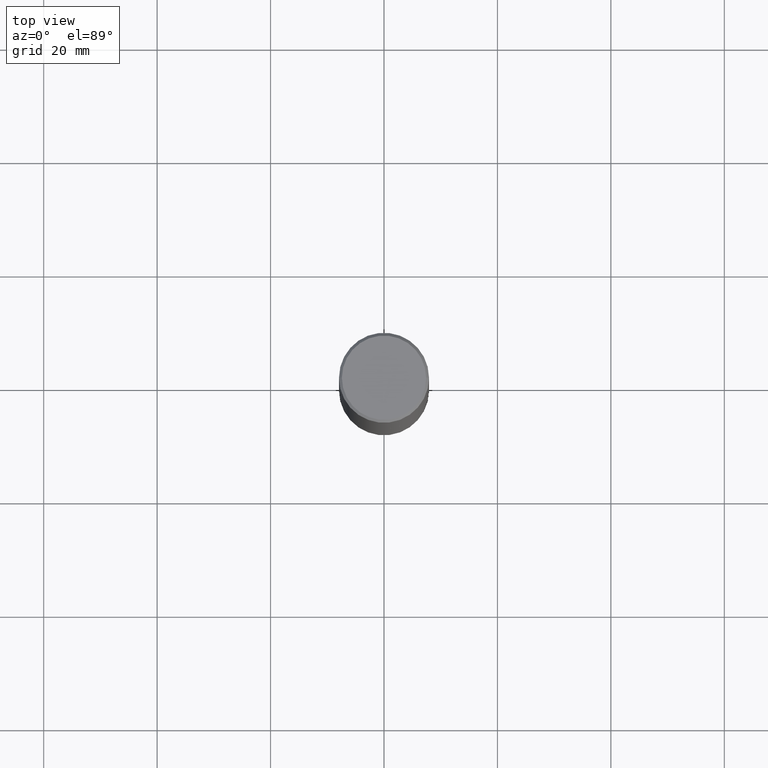
[diagram: clean part render]
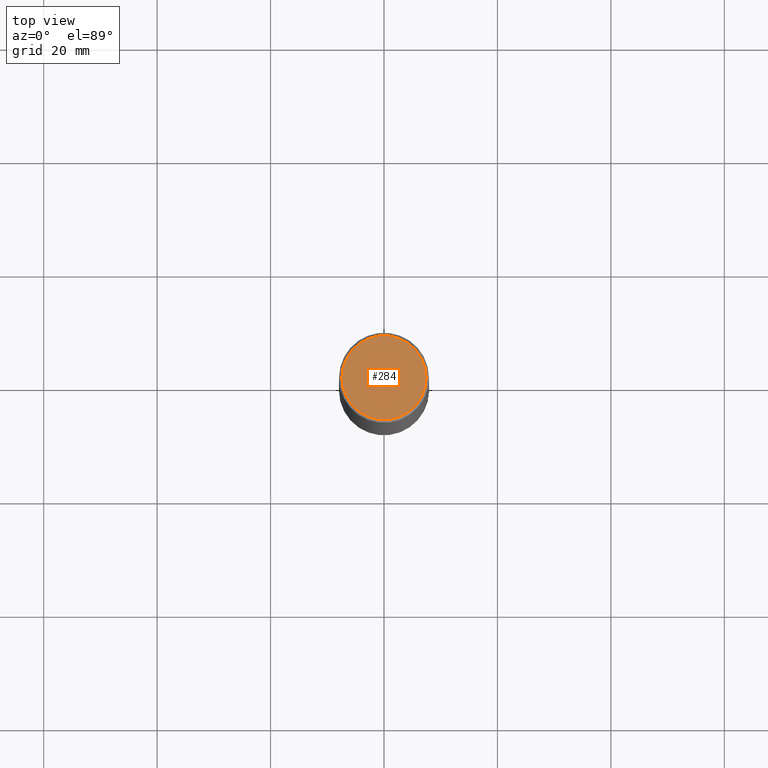
[diagram: same view with one face highlighted and labeled with its STEP entity id]
A machine part, top view. The second image highlights one B-rep face of the part: STEP entity #284.
In plain terms, the highlighted planar face has unit normal (0, -0, -1).
Its self-contained STEP definition (entity closure, byte-faithful):
#23 = DIRECTION ( 'NONE',  ( 2.438088387897960049E-29, -3.491481338843145188E-15, -1.000000000000000000 ) ) ;
#33 = EDGE_LOOP ( 'NONE', ( #95, #265 ) ) ;
#52 = DIRECTION ( 'NONE',  ( -1.000000000000000000, 6.982962677686265922E-15, -4.876176775795935793E-29 ) ) ;
#56 = CARTESIAN_POINT ( 'NONE',  ( -0.2924999999999997602, 2.077431396611662216E-15, 4.268512490086005323E-18 ) ) ;
#95 = ORIENTED_EDGE ( 'NONE', *, *, #216, .T. ) ;
#140 = CARTESIAN_POINT ( 'NONE',  ( -1.043851414335219820E-46, 1.490343170380447200E-32, 4.268512490100411279E-18 ) ) ;
#163 = AXIS2_PLACEMENT_3D ( 'NONE', #362, #312, #336 ) ;
#169 = CARTESIAN_POINT ( 'NONE',  ( 2.042516583223230962E-15, 0.2924999999999997602, -1.019124035366569015E-15 ) ) ;
#191 = AXIS2_PLACEMENT_3D ( 'NONE', #140, #195, #227 ) ;
#195 = DIRECTION ( 'NONE',  ( -2.445468806185136597E-29, 3.491481338843145583E-15, 1.000000000000000000 ) ) ;
#216 = EDGE_CURVE ( 'NONE', #320, #343, #354, .T. ) ;
#227 = DIRECTION ( 'NONE',  ( 1.000000000000000000, -6.982962677686266711E-15, 4.876067333457693400E-29 ) ) ;
#228 = AXIS2_PLACEMENT_3D ( 'NONE', #169, #23, #52 ) ;
#231 = PLANE ( 'NONE',  #228 ) ;
#265 = ORIENTED_EDGE ( 'NONE', *, *, #344, .T. ) ;
#282 = CARTESIAN_POINT ( 'NONE',  ( 0.2924999999999997602, -2.110215457714317959E-15, 4.268512490114932791E-18 ) ) ;
#284 = ADVANCED_FACE ( 'NONE', ( #366 ), #231, .F. ) ;
#312 = DIRECTION ( 'NONE',  ( -2.445468806185136597E-29, 3.491481338843145583E-15, 1.000000000000000000 ) ) ;
#320 = VERTEX_POINT ( 'NONE', #56 ) ;
#336 = DIRECTION ( 'NONE',  ( 1.000000000000000000, -6.982962677686266711E-15, 4.876067333457693400E-29 ) ) ;
#343 = VERTEX_POINT ( 'NONE', #282 ) ;
#344 = EDGE_CURVE ( 'NONE', #343, #320, #347, .T. ) ;
#347 = CIRCLE ( 'NONE', #191, 0.2924999999999997602 ) ;
#354 = CIRCLE ( 'NONE', #163, 0.2924999999999997602 ) ;
#362 = CARTESIAN_POINT ( 'NONE',  ( -1.043851414335219820E-46, 1.490343170380447200E-32, 4.268512490100411279E-18 ) ) ;
#366 = FACE_OUTER_BOUND ( 'NONE', #33, .T. ) ;